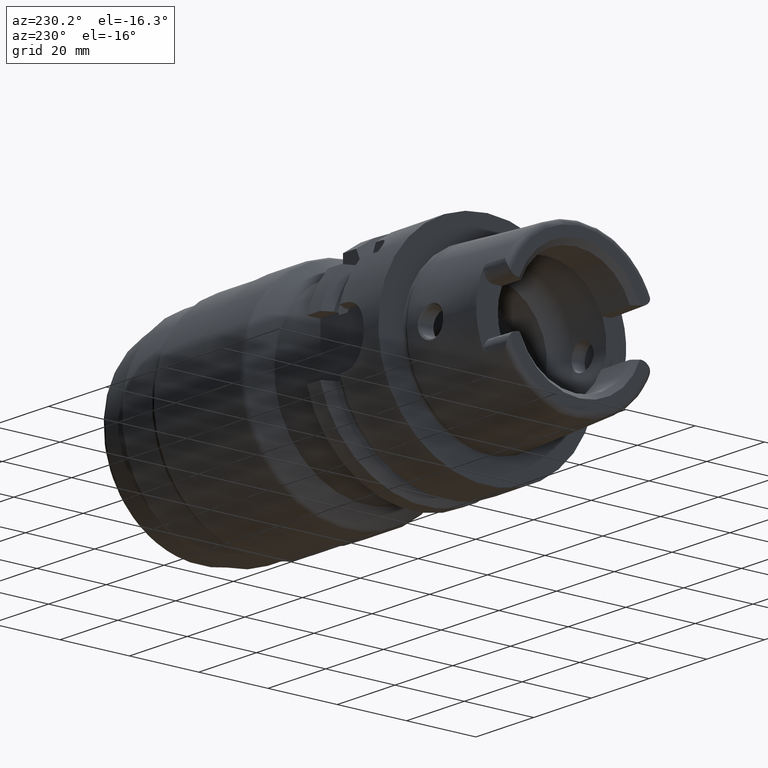
[diagram: clean part render]
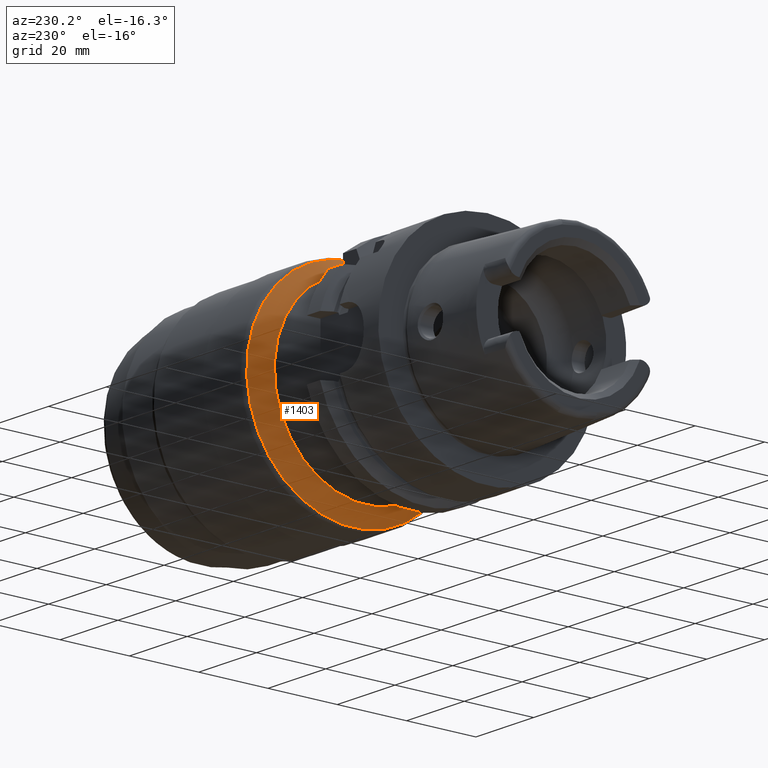
[diagram: same view with one face highlighted and labeled with its STEP entity id]
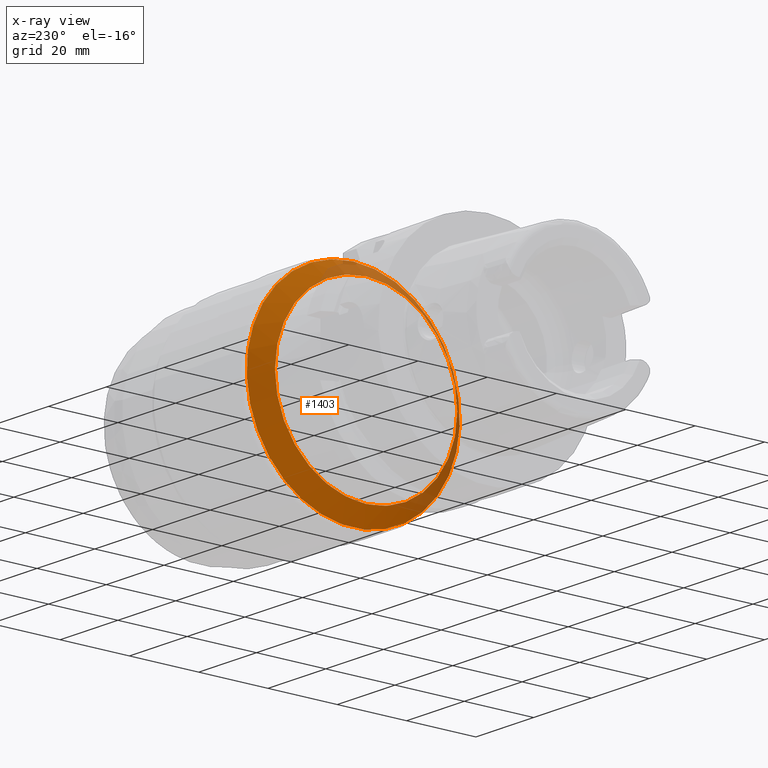
[diagram: x-ray of the same camera — body ghosted, the highlighted face saturated]
A machine part, auxiliary view. The second image highlights one B-rep face of the part: STEP entity #1403.
The next image is the same camera in x-ray: the body ghosted, the highlighted face saturated — about 18% of this face is hidden behind the body in this view.
In plain terms, the highlighted conical surface has half-angle 45 deg.
Its self-contained STEP definition (entity closure, byte-faithful):
#7 = DIRECTION ( 'NONE',  ( 1.000000000000000000, 0.0000000000000000000, 0.0000000000000000000 ) ) ;
#110 = AXIS2_PLACEMENT_3D ( 'NONE', #617, #7, #1446 ) ;
#617 = CARTESIAN_POINT ( 'NONE',  ( 74.00000000000001400, 0.0000000000000000000, 0.0000000000000000000 ) ) ;
#650 = AXIS2_PLACEMENT_3D ( 'NONE', #3634, #3334, #1594 ) ;
#792 = ORIENTED_EDGE ( 'NONE', *, *, #836, .T. ) ;
#836 = EDGE_CURVE ( 'NONE', #2429, #2429, #1300, .T. ) ;
#850 = EDGE_CURVE ( 'NONE', #1673, #1673, #3262, .T. ) ;
#1142 = CARTESIAN_POINT ( 'NONE',  ( 78.46421356240838900, 0.0000000000000000000, 30.76421356240853200 ) ) ;
#1164 = CARTESIAN_POINT ( 'NONE',  ( 78.46421356240838900, 0.0000000000000000000, 0.0000000000000000000 ) ) ;
#1300 = CIRCLE ( 'NONE', #2970, 30.76421356240853200 ) ;
#1344 = FACE_OUTER_BOUND ( 'NONE', #2254, .T. ) ;
#1403 = ADVANCED_FACE ( 'NONE', ( #1668, #1344 ), #2245, .T. ) ;
#1446 = DIRECTION ( 'NONE',  ( 0.0000000000000000000, 0.0000000000000000000, 1.000000000000000000 ) ) ;
#1594 = DIRECTION ( 'NONE',  ( 0.0000000000000000000, 0.0000000000000000000, -1.000000000000000000 ) ) ;
#1668 = FACE_BOUND ( 'NONE', #3438, .T. ) ;
#1673 = VERTEX_POINT ( 'NONE', #2901 ) ;
#2245 = CONICAL_SURFACE ( 'NONE', #650, 30.76421356240853200, 0.7853981633974487200 ) ;
#2254 = EDGE_LOOP ( 'NONE', ( #792 ) ) ;
#2429 = VERTEX_POINT ( 'NONE', #1142 ) ;
#2883 = DIRECTION ( 'NONE',  ( -1.000000000000000000, -0.0000000000000000000, -0.0000000000000000000 ) ) ;
#2901 = CARTESIAN_POINT ( 'NONE',  ( 74.00000000000001400, 0.0000000000000000000, 26.30000000000014600 ) ) ;
#2970 = AXIS2_PLACEMENT_3D ( 'NONE', #1164, #2883, #3510 ) ;
#3262 = CIRCLE ( 'NONE', #110, 26.30000000000014600 ) ;
#3334 = DIRECTION ( 'NONE',  ( 1.000000000000000000, 0.0000000000000000000, 0.0000000000000000000 ) ) ;
#3438 = EDGE_LOOP ( 'NONE', ( #3583 ) ) ;
#3510 = DIRECTION ( 'NONE',  ( 0.0000000000000000000, 0.0000000000000000000, 1.000000000000000000 ) ) ;
#3583 = ORIENTED_EDGE ( 'NONE', *, *, #850, .T. ) ;
#3634 = CARTESIAN_POINT ( 'NONE',  ( 78.46421356240838900, 0.0000000000000000000, 0.0000000000000000000 ) ) ;